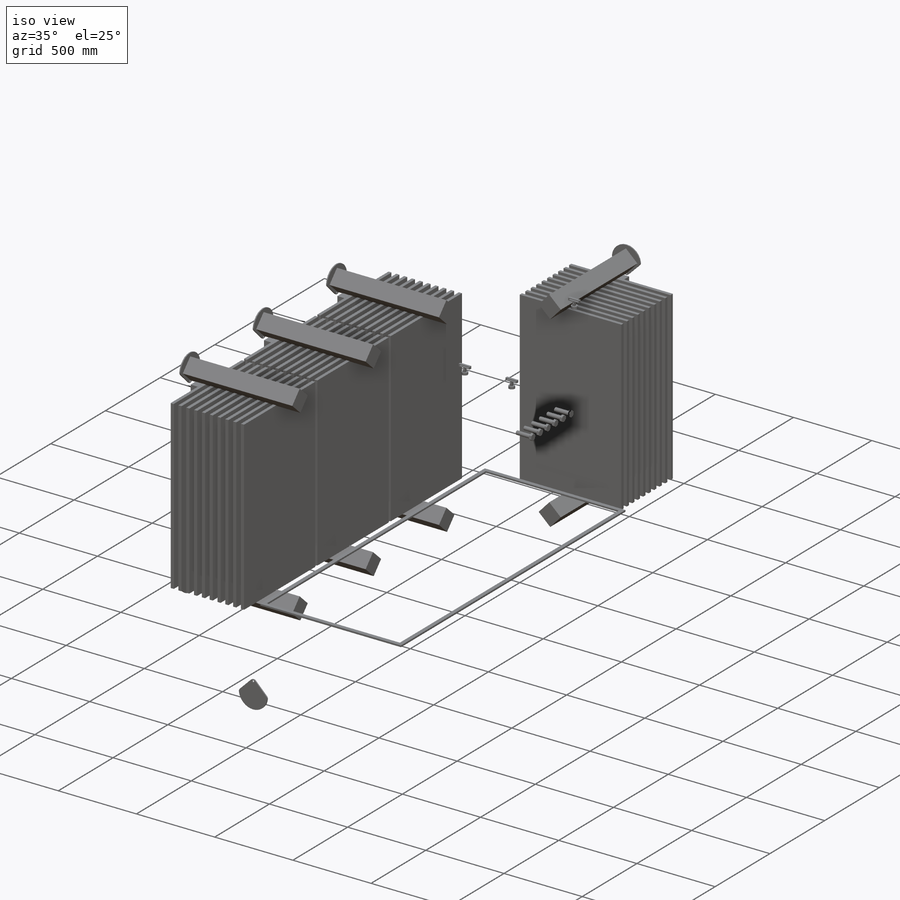
[diagram: iso view]
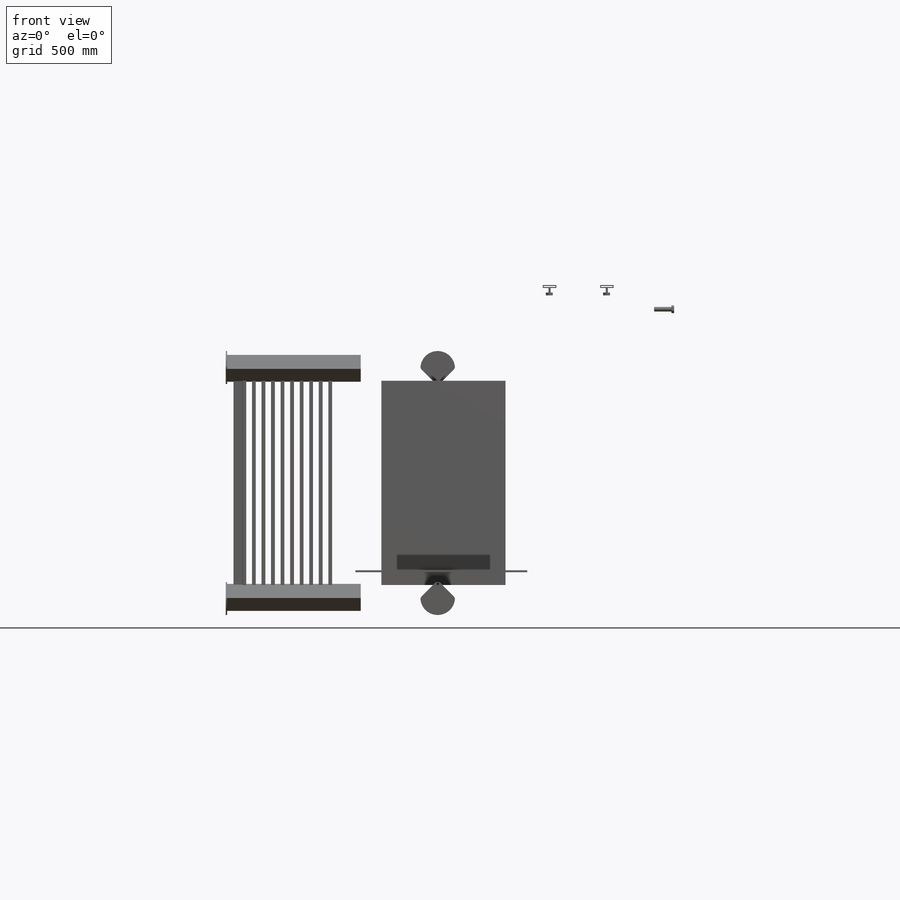
[diagram: front view]
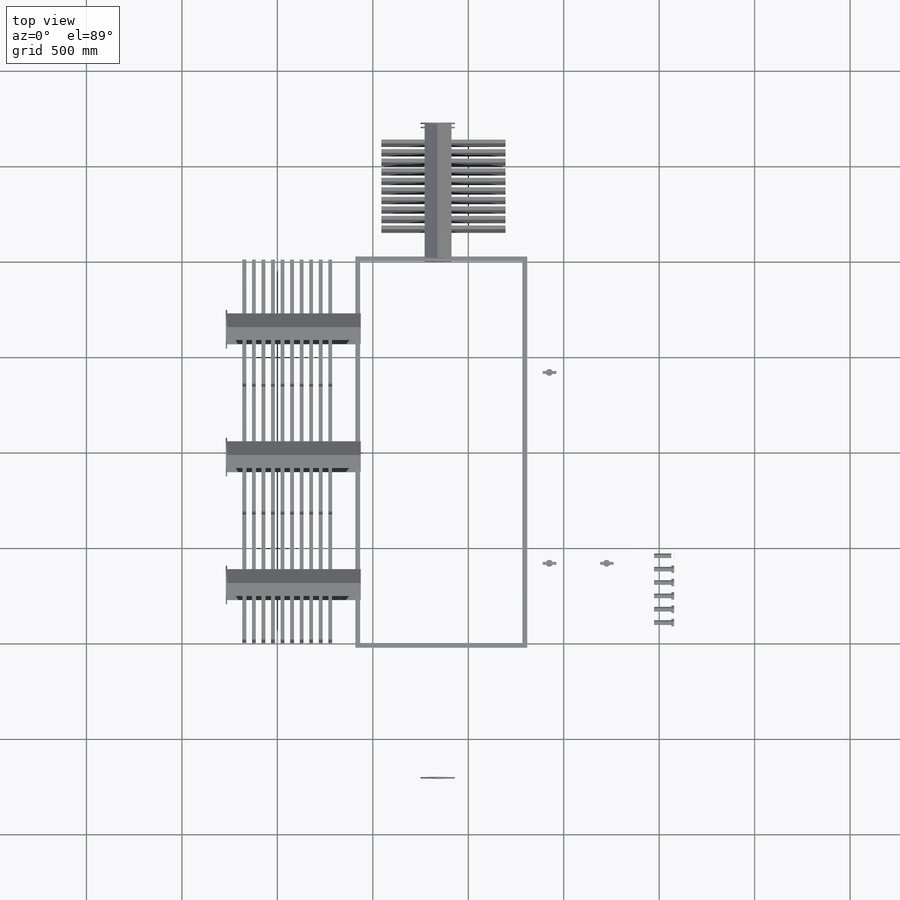
[diagram: top view]
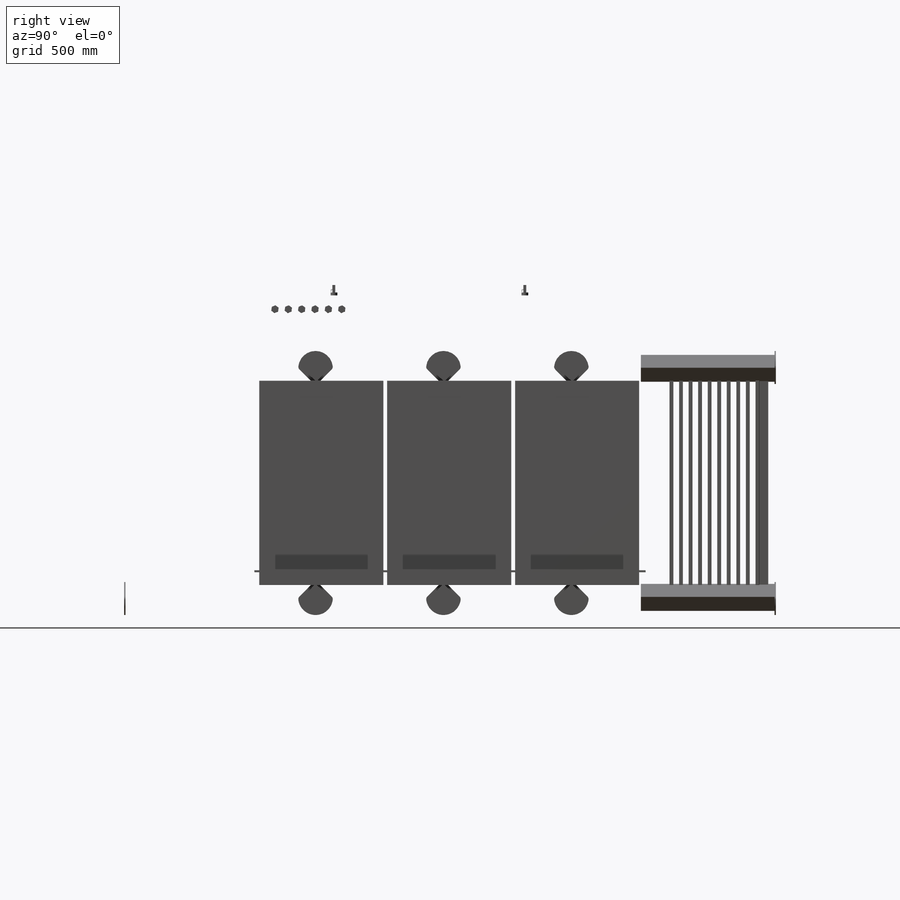
[diagram: right view]
SOLIDWORKS PART (.sldprt)
format: sldprt  version: not decoded by parser v0  size: 11,813,376 bytes
history: native  units: mm
features: sketch x51, extrude x29, move_body x21, fillet x16, pattern_linear x15, plane x11, cut_extrude x9, mirror x4, revolve x2, sweep x2, material x1, thread x1 + 5 further entries (+27 scaffold rows collapsed; 12 parser-record rows omitted)
feature tree (206):
  scaffold x27  (default folders/planes/origin — collapsed)
  material  "Material <not specified>"
  sketch  "Sketch1"  dims[D1=650.0mm D2=1450.0mm D3=1950.0mm D4=850.0mm]
  extrude  "Boss-Extrude1"  Depth=2000mm
  sketch  "Sketch2"  dims[D1=0.0mm D2=100.0mm]
  extrude  "Boss-Extrude2"  Depth=150mm
  sketch  "Sketch3"  dims[D1=0.0mm D2=40.0mm]
  extrude  "Boss-Extrude3"  Depth=30mm
  sketch  "Sketch4"  dims[D1=100.0mm D2=100.0mm]
  extrude  "Boss-Extrude4"  Depth=700mm
  pattern_linear  "LPattern1"  Count1=2 Count2=1 Spacing1=1200mm Spacing2=10mm
  plane  "Plane1"  Offset=150mm
  sketch  "Sketch5"  dims[D1=650.0mm D2=1070.0mm]
  extrude  "Boss-Extrude5"  Depth=20mm
  pattern_linear  "LPattern5"  Count1=10 Count2=1 Spacing1=50mm Spacing2=10mm
  fillet  "Fillet17"  Radius=2mm
  sketch  "Sketch6"  dims[D1=20.0mm]
  extrude  "Boss-Extrude6"  Depth=7mm
  sketch  "Sketch7"
  cut_extrude  "Cut-Extrude1"  Depth=7mm
  pattern_linear  "LPattern6"  Count1=2 Count2=1 Spacing1=1210mm Spacing2=10mm
  sketch  "Sketch8"
  extrude  "Boss-Extrude7"  Depth=47mm
  sketch  "Sketch9"
  plane  "Plane2"
  mirror  "Mirror1"
  sketch  "Sketch10"  dims[D1=0.0mm]
  move_body  "Body-Move/Copy2"
  move_body  "Body-Move/Copy3"
  move_body  "Body-Move/Copy4"
  move_body  "Body-Move/Copy5"
  move_body  "Body-Move/Copy6"
  pattern_linear  "LPattern7"  Count1=3 Count2=1 Spacing1=670mm Spacing2=10mm
  move_body  "Body-Move/Copy7"
  move_body  "Body-Move/Copy8"
  move_body  "Body-Move/Copy9"
  move_body  "Body-Move/Copy10"
  move_body  "Body-Move/Copy11"
  sketch  "Sketch11"
  extrude  "Boss-Extrude8"  Depth=200mm
  sketch  "Sketch12"
  cut_extrude  "Cut-Extrude2"  [1 undecoded]
  sketch  "Sketch14"
  cut_extrude  "Cut-Extrude3"  [1 undecoded]
  pattern_linear  "LPattern8"  Count1=6 Count2=1 Spacing1=250mm Spacing2=10mm
  sketch  "Sketch15"  dims[D1=0.0mm]
  cut_extrude  "Cut-Extrude4"  Depth=220mm
  sketch  "Sketch16"  dims[D1=0.0mm D2=20.0mm]
  cut_extrude  "Cut-Extrude5"  [1 undecoded]
  sketch  "Sketch17"
  extrude  "Boss-Extrude9"  Depth=150mm
  sketch  "Sketch18"  dims[c1.D1=0.0mm c1.D2=20.0mm c2.D1=0.0mm]
  cut_extrude  "Cut-Extrude6"  [1 undecoded]
  pattern_linear  "LPattern9"  Count1=2 Count2=1 Spacing1=1420mm Spacing2=10mm
  sketch  "Sketch20"
  plane  "Plane3"
  sketch  "Sketch21"
  extrude  "Boss-Extrude10"  Depth=350mm
  sketch  "Sketch22"  dims[D1=0.0mm D2=10.0mm]
  extrude  "Boss-Extrude11"  Depth=500mm
  mirror  "Mirror2"
  sketch  "Sketch23"  dims[D1=700.0mm]
  sketch  "Sketch24"  dims[D1=~273.44379mm]
  extrude  "Boss-Extrude12"  Depth=590mm
  plane  "Plane4"  Offset=400mm
  sketch  "Sketch25"
  revolve  "Revolve1"  Angle=360deg
  fillet  "Fillet18"  Radius=2mm
  sketch  "Sketch27"
  plane  "Plane5"
  sketch  "Sketch28"
  extrude  "Boss-Extrude13"  Depth=50mm
  sketch  "Sketch29"
  cut_extrude  "Cut-Extrude7"  Depth=50mm
  pattern_linear  "LPattern10"  Count1=3 Count2=3 Spacing1=30mm Spacing2=25mm
  mirror  "Mirror3"
  pattern_linear  "LPattern11"  Count1=3 Count2=1 Spacing1=300mm Spacing2=25mm
  move_body  "Body-Move/Copy12"
  move_body  "Body-Move/Copy13"
  move_body  "Body-Move/Copy14"
  pattern_linear  "LPattern15"  Count1=6 Count2=1 Spacing1=300mm Spacing2=25mm
  fillet  "Fillet19"  Radius=12mm
  fillet  "Fillet20"  Radius=12mm
  fillet  "Fillet21"  Radius=12mm
  fillet  "Fillet22"  Radius=12mm
  fillet  "Fillet23"  Radius=12mm
  fillet  "Fillet24"  Radius=12mm
  fillet  "Fillet25"  Radius=12mm
  fillet  "Fillet26"  Radius=12mm
  fillet  "Fillet27"  Radius=12mm
  fillet  "Fillet28"  Radius=12mm
  plane  "Plane6"  Offset=220mm
  sketch  "Sketch30"  dims[D1=2.0mm]
  revolve  "Revolve2"  Angle=360deg
  pattern_linear  "LPattern16"  Count1=3 Count2=1 Spacing1=300mm Spacing2=25mm
  sketch  "Sketch31"  dims[D1=0.0mm D2=20.0mm]
  extrude  "Boss-Extrude14"  Depth=10mm
  sketch  "Sketch32"  dims[D1=0.0mm D2=20.0mm]
  extrude  "Boss-Extrude15"  Depth=10mm
  sketch  "Sketch33"  dims[D1=0.0mm]
  extrude  "Boss-Extrude16"  Depth=19mm
  sketch  "Sketch34"  dims[D1=0.0mm]
  extrude  "Boss-Extrude17"  Depth=19mm
  plane  "Plane7"  Offset=150mm
  sketch  "Sketch36"  dims[D1=0.0mm]
  extrude  "Boss-Extrude18"  Depth=10mm
  sketch  "Sketch37"  dims[D1=30.0mm D2=~70.887322mm]
  extrude  "Boss-Extrude19"  Depth=15mm
  sketch  "Sketch38"  dims[D1=0.0mm D2=5.0mm]
  cut_extrude  "Cut-Extrude9"  Depth=25mm
  move_body  "Body-Move/Copy15"
  sketch  "Sketch39"
  extrude  "Boss-Extrude20"  Depth=15mm
  sketch  "Sketch40"
  extrude  "Boss-Extrude21"  Depth=5mm
  move_body  "Body-Move/Copy16"
  pattern_linear  "LPattern17"  Count1=2 Count2=1 Spacing1=1000mm Spacing2=10mm
  move_body  "Body-Move/Copy17"
  sketch  "Sketch41"
  plane  "Plane8"
  sketch  "Sketch42"  dims[D1=0.0mm]
  sketch  "Sketch43"
  sweep  "Sweep1"
  pattern_linear  "LPattern18"  Count1=3 Count2=1 Spacing1=300mm Spacing2=10mm
  sketch  "Sketch44"
  extrude  "Boss-Extrude22"  Depth=25mm
  sketch  "Sketch45"
  extrude  "Boss-Extrude23"  Depth=15mm
  sketch  "Sketch46"
  extrude  "Boss-Extrude24"  Depth=35mm
  fillet  "Fillet29"  Radius=10mm
  fillet  "Fillet30"  Radius=10mm
  fillet  "Fillet31"  Radius=2mm
  plane  "Plane9"  Offset=510mm
  sketch  "Sketch47"  dims[D1=25.0mm]
  extrude  "Boss-Extrude25"  Depth=10mm
  pattern_linear  "LPattern19"  Count1=2 Count2=1 Spacing1=470mm Spacing2=10mm
  sketch  "Sketch48"  dims[D1=~17.351179mm]
  plane  "Plane11"
  sketch  "Sketch50"
  sweep  "Sweep3"
  sketch  "Sketch51"
  extrude  "Boss-Extrude26"  Depth=110mm
  fillet  "Fillet32"  Radius=2mm
  sketch  "Sketch52"  dims[D1=0.0mm D2=15.0mm]
  extrude  "Boss-Extrude28"  [1 undecoded]
  "high strength hex head bolt_din"
  parser-record x12  (decoder bookkeeping rows leaked as tree rows — omitted from the tree; the rows remain in map.json)
  thread  "ThreadCosmetic-high strength hex head bolt_din"  Diameter=37mm  [1 undecoded]
  move_body  "Body-Move/Copy28"
  move_body  "Body-Move/Copy29"
  "hex nut gradec_din1"
  "ThreadCosmetic-hex nut gradec_din1"
  move_body  "Body-Move/Copy33"
  move_body  "Body-Move/Copy34"
  pattern_linear  "LPattern20"  Count1=27 Count2=6 Spacing1=70mm Spacing2=100mm
  "hex bolt gradeab_din"
  "ThreadCosmetic-hex bolt gradeab_din"
  move_body  "Body-Move/Copy36"
  pattern_linear  "LPattern21"  Count1=29 Count2=18 Spacing1=70mm Spacing2=85mm
  sketch  "Sketch53"  dims[D1=0.0mm]
  extrude  "Boss-Extrude29"  Depth=10mm
  sketch  "Sketch54"
  cut_extrude  "Cut-Extrude10"  Depth=10mm
  sketch  "Sketch55"
  plane  "Plane12"
  mirror  "Mirror4"
  sketch  "Sketch56"  dims[D1=0.0mm]
  extrude  "Boss-Extrude30"  Depth=15mm
decode coverage: 94 of 150 modeling features carry decoded parameters; 5 rows unclassified (native names shown)
note: ~ marks probable driven/reference dimensions
note: 6 parameter values undecoded
summary: no parameter record found for 5 features
note: suppression state not decoded; provenance and decode notes live in map.json
